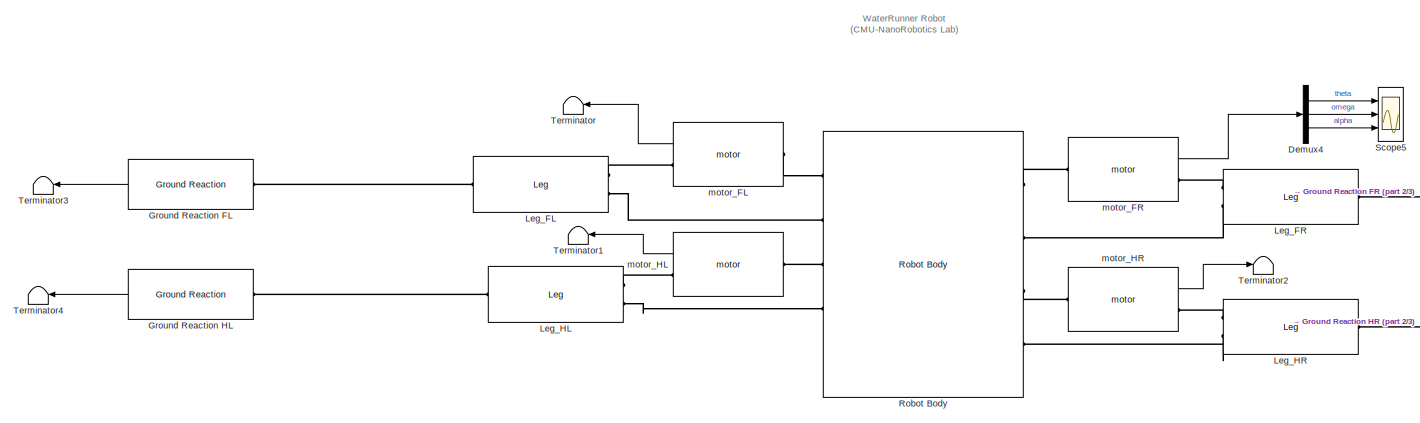
[diagram: root canvas - part 1/3, full width, top band]
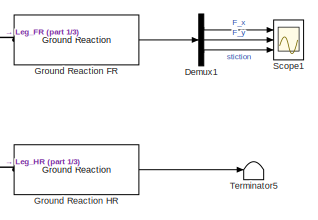
[diagram: root canvas - part 2/3, top right region]
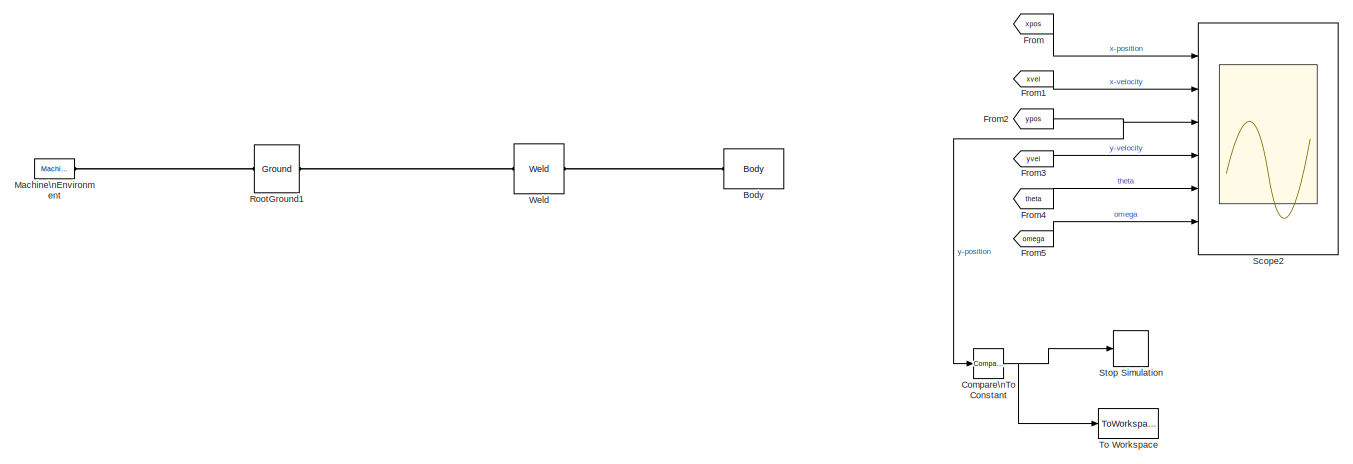
[diagram: root canvas - part 3/3, bottom center region]
MODEL WaterRunner_nofeet
KIND model
CONFIG InitFcn = simParams
CONFIG StartFcn = simParams
BLOCK [Reference] Body  REF=mblibv1/Bodies/Body
  AttachedToCS = CG
  BodyColor = [0.83137 0.81569 0.78431]
  BodyColorSelMode = COLORPALETTE
  CG = Left$CG$[0 0 0]$WORLD$WORLD$m$[0 0 0]$Euler X-Y-Z$deg$WORLD$true$none
  CGPos = [0 0 0]
  CGRot = [0 0 0]
  CS0Pos = []
  CS0Rot = []
  CS10Pos = []
  CS10Rot = []
  CS11Pos = []
  CS11Rot = []
  CS12Pos = []
  CS12Rot = []
  CS13Pos = []
  CS13Rot = []
  CS14Pos = []
  CS14Rot = []
  CS15Pos = []
  CS15Rot = []
  CS16Pos = []
  CS16Rot = []
  CS17Pos = []
  CS17Rot = []
  CS18Pos = []
  CS18Rot = []
  CS19Pos = []
  CS19Rot = []
  CS1Pos = [-0.5 water_level -0.2 ]
  CS1Rot = [0 0 0]
  CS20Pos = []
  CS20Rot = []
  CS2Pos = [-0.5 water_level 0.2 ]
  CS2Rot = [0 0 0]
  CS3Pos = [4 water_level -0.2 ]
  CS3Rot = [0 0 0]
  CS4Pos = [4 water_level 0.2 ]
  CS4Rot = [0 0 0]
  CS5Pos = []
  CS5Rot = []
  CS6Pos = []
  CS6Rot = []
  CS7Pos = []
  CS7Rot = []
  CS8Pos = []
  CS8Rot = []
  CS9Pos = []
  CS9Rot = []
  ClassName = Body
  Density = 1
  DensityUnits = kg/m^3
  DensityUse = false
  DialogClass = MechanicalBodyBlock
  GraphicsMode = CONVHULL
  Inertia = eye(3)
  InertiaUnits = kg*m^2
  LConnTagsString = CG
  Mass = 1
  MassUnits = kg
  Ports = [0, 0, 0, 0, 0, 1]
  SID = 2127
  Shape = Cylinder
  ShapeDims = [1 1]
  ShapeUnits = m
  ShapeUse = false
  SourceBlock = mblibv1/Bodies/Body
  SourceType = Body
  UpdateFromCAD = off
  WorkingFrames = Left$CS1$[-0.5 water_level -0.2 ]$CG$CG$m$[0 0 0]$Euler X-Y-Z$deg$WORLD$false$none#Left$CS2$[-0.5 water_level 0.2 ]$CG$CG$m$[0 0 0]$Euler X-Y-Z$deg$WORLD$false$none#Left$CS3$[4 water_level -0.2 ]$CG$CG$m$[0 0 0]$Euler X-Y-Z$deg$WORLD$false$none#Left$CS4$[4 water_level 0.2 ]$CG$CG$m$[0 0 0]$Euler X-Y-Z$deg$WORLD$false$none
BLOCK [Reference] Compare\nTo Constant  REF=simulink/Logic and Bit\nOperations/Compare\nTo Constant
  OutDataTypeStr = boolean
  Ports = [1, 1]
  SID = 2114
  SourceBlock = simulink/Logic and Bit\nOperations/Compare\nTo Constant
  SourceType = Compare To Constant
  ZeroCross = on
  const = -.03
  relop = <
BLOCK [Demux] Demux1
  DisplayOption = bar
  Outputs = 3
  Ports = [1, 3]
  SID = 2171
BLOCK [Demux] Demux4
  DisplayOption = bar
  Outputs = 3
  Ports = [1, 3]
  SID = 2124
BLOCK [From] From
  GotoTag = xpos
  SID = 2115
  TagVisibility = global
BLOCK [From] From1
  GotoTag = xvel
  SID = 2116
  TagVisibility = global
BLOCK [From] From2
  GotoTag = ypos
  SID = 2117
  TagVisibility = global
BLOCK [From] From3
  GotoTag = yvel
  SID = 2118
  TagVisibility = global
BLOCK [From] From4
  GotoTag = theta
  SID = 2119
  TagVisibility = global
BLOCK [From] From5
  GotoTag = omega
  SID = 2120
  TagVisibility = global
BLOCK [Reference] Ground Reaction FL  REF=WaterRunner_lib/Ground Reaction
  Ports = [0, 1, 0, 0, 0, 1]
  SID = 2164
  SourceBlock = WaterRunner_lib/Ground Reaction
  SourceType = SubSystem
BLOCK [Reference] Ground Reaction FR  REF=WaterRunner_lib/Ground Reaction
  Ports = [0, 1, 0, 0, 0, 1]
  SID = 2163
  SourceBlock = WaterRunner_lib/Ground Reaction
  SourceType = SubSystem
BLOCK [Reference] Ground Reaction HL  REF=WaterRunner_lib/Ground Reaction
  Ports = [0, 1, 0, 0, 0, 1]
  SID = 2165
  SourceBlock = WaterRunner_lib/Ground Reaction
  SourceType = SubSystem
BLOCK [Reference] Ground Reaction HR  REF=WaterRunner_lib/Ground Reaction
  Ports = [0, 1, 0, 0, 0, 1]
  SID = 2162
  SourceBlock = WaterRunner_lib/Ground Reaction
  SourceType = SubSystem
BLOCK [Reference] Leg_FL  REF=WaterRunner_lib/Leg
  Ports = [0, 0, 0, 0, 0, 2, 1]
  SID = 2148
  SourceBlock = WaterRunner_lib/Leg
BLOCK [Reference] Leg_FR  REF=WaterRunner_lib/Leg
  Ports = [0, 0, 0, 0, 0, 2, 1]
  SID = 2092
  SourceBlock = WaterRunner_lib/Leg
BLOCK [Reference] Leg_HL  REF=WaterRunner_lib/Leg
  Ports = [0, 0, 0, 0, 0, 2, 1]
  SID = 2153
  SourceBlock = WaterRunner_lib/Leg
BLOCK [Reference] Leg_HR  REF=WaterRunner_lib/Leg
  Ports = [0, 0, 0, 0, 0, 2, 1]
  SID = 2143
  SourceBlock = WaterRunner_lib/Leg
BLOCK [Reference] Machine\nEnvironment  REF=mblibv1/Bodies/Machine\nEnvironment
  AnalysisType = Forward dynamics
  AngularAssemblyTolerance = 1e-3
  AngularAssemblyToleranceUnits = rad
  BodyColorSelMode = Use model default
  BodyVisualizationType = Use model default body geometries
  ClassName = Environment
  ConstraintAbsTolerance = 1e-4
  ConstraintRelTolerance = 1e-4
  ConstraintSolverType = Stabilizing
  DefaultBodyColor = [1 0 0]
  DialogTemplateClass = MECH.MachineEnvironment
  Dimensionality = Auto-detect
  Gravity = [0 -9.81 0]
  GravityAsSignal = off
  GravityUnits = m/s^2
  LinearAssemblyTolerance = 1e-3
  LinearAssemblyToleranceUnits = m
  PerturbationSize = 1e-5
  PhysicalDomain = Mechanical
  PortType = env
  Ports = [0, 0, 0, 0, 0, 0, 1]
  RedundancyAnalysisTolerance = 1e-14
  RedundancyAnalysisToleranceType = Automatically select tolerance
  SID = 2128
  SourceBlock = mblibv1/Bodies/Machine\nEnvironment
  SourceType = Machine Environment
  StatePerturbationType = Fixed
  SyncWhenCopied = off
  UseRobustSingularityHandling = off
  VisualizeMachine = on
BLOCK [Reference] Robot Body  REF=WaterRunner_lib/Robot Body
  Ports = [0, 0, 0, 0, 0, 5, 4]
  SID = 2102
  SourceBlock = WaterRunner_lib/Robot Body
  initRobHeight = initRobHeight
BLOCK [Reference] RootGround1  REF=mblibv1/Bodies/Ground
  ClassName = Ground
  CoordPosition = [0 0 0]
  CoordPositionUnits = m
  DialogClass = GroundBlock
  LeftPortType = env
  MachineId = [1 0]
  PhysicalDomain = Mechanical
  Ports = [0, 0, 0, 0, 0, 1, 1]
  RightPortType = workingframe
  SID = 2129
  ShowEnvPort = on
  SourceBlock = mblibv1/Bodies/Ground
  SourceType = Ground
  StateVectorMgrId = 0
  UpdateFromCAD = on
  UserData = DataTag0
  UserDataPersistent = on
BLOCK [Scope] Scope1
  DataFormat = StructureWithTime
  Floating = off
  LimitDataPoints = off
  NumInputPorts = 3
  Ports = [3]
  SID = 2172
  SampleTime = 0
  SaveName = footForce
  SaveToWorkspace = on
  ShowLegends = off
  TimeRange = 2
  YMax = 500~1500~30000
  YMin = -1250~0~-70000
  ZoomMode = xonly
BLOCK [Scope] Scope2
  DataFormat = StructureWithTime
  Floating = off
  LegendLocations = 0.76193      0.9325    0.056569    0.046382\n0.76008      0.7741    0.057091    0.046382\n0.76008     0.61569    0.057091    0.046382\n0.75824     0.45728    0.057612    0.046382\n0.80161     0.29888    0.042492    0.046382\n0.79576     0.14047    0.047706    0.046382
  LimitDataPoints = off
  NumInputPorts = 6
  Ports = [6]
  SID = 2121
  SampleTime = 0
  SaveName = position
  SaveToWorkspace = on
  ShowLegends = on
  TimeRange = 2
  YMax = 2~3.5~0.2~1.5~0.8~10
  YMin = 0~0~-1.38778e-17~-1.5~-0.1~-7.5
  ZoomMode = xonly
BLOCK [Scope] Scope5
  DataFormat = StructureWithTime
  Floating = off
  LimitDataPoints = off
  NumInputPorts = 3
  Ports = [3]
  SID = 2125
  SampleTime = 0
  SaveName = MotorMotion
  SaveToWorkspace = on
  ShowLegends = off
  TimeRange = 2
  YMax = 0~0~30000
  YMin = -17.5~-90~-70000
  ZoomMode = yonly
BLOCK [Stop] Stop Simulation
  SID = 2122
BLOCK [Terminator] Terminator
  SID = 2166
BLOCK [Terminator] Terminator1
  SID = 2167
BLOCK [Terminator] Terminator2
  SID = 2168
BLOCK [Terminator] Terminator3
  SID = 2174
BLOCK [Terminator] Terminator4
  SID = 2176
BLOCK [Terminator] Terminator5
  SID = 2177
BLOCK [ToWorkspace] To Workspace
  MaxDataPoints = inf
  Ports = [1]
  SID = 2123
  SampleTime = -1
  SaveFormat = Timeseries
  VariableName = stopped
BLOCK [Reference] Weld  REF=mblibv1/Joints/Weld
  ClassName = Joint
  CutJoint = off
  DialogClass = JointBlock
  LConnTagsString = __newl0
  MarkAsCut = off
  NumSAPorts = 0
  Ports = [0, 0, 0, 0, 0, 1, 1]
  PrimitiveProps = W$WORLD$[0 0 0]$weld
  Primitives = weld
  RConnTagsString = __newr0
  SID = 2130
  SourceBlock = mblibv1/Joints/Weld
  SourceType = Weld
  UpdateFromCAD = off
  WAxis = [0 0 0]
BLOCK [Reference] motor_FL  REF=WaterRunner_lib/motor
  Ports = [0, 1, 0, 0, 0, 1, 1]
  SID = 2147
  SourceBlock = WaterRunner_lib/motor
  ic_angle = pi
  variableName = work_FL
BLOCK [Reference] motor_FR  REF=WaterRunner_lib/motor
  Ports = [0, 1, 0, 0, 0, 1, 1]
  SID = 2087
  SourceBlock = WaterRunner_lib/motor
  ic_angle = 0
  variableName = work_FR
BLOCK [Reference] motor_HL  REF=WaterRunner_lib/motor
  Ports = [0, 1, 0, 0, 0, 1, 1]
  SID = 2155
  SourceBlock = WaterRunner_lib/motor
  ic_angle = 0
  variableName = work_HL
BLOCK [Reference] motor_HR  REF=WaterRunner_lib/motor
  Ports = [0, 1, 0, 0, 0, 1, 1]
  SID = 2146
  SourceBlock = WaterRunner_lib/motor
  ic_angle = pi
  variableName = work_HR
ANNOTATION (root): WaterRunner Robot\n(CMU-NanoRobotics Lab)
NET Compare\nTo Constant:1 -> Stop Simulation:1, To Workspace:1
LINE Demux1:1 -> Scope1:1
LINE Demux1:2 -> Scope1:2
LINE Demux1:3 -> Scope1:3
LINE Demux4:1 -> Scope5:1
LINE Demux4:2 -> Scope5:2
LINE Demux4:3 -> Scope5:3
LINE From1:1 -> Scope2:2
NET From2:1 -> Compare\nTo Constant:1, Scope2:3
LINE From3:1 -> Scope2:4
LINE From4:1 -> Scope2:5
LINE From5:1 -> Scope2:6
LINE From:1 -> Scope2:1
LINE Ground Reaction FL:1 -> Terminator3:1
LINE Ground Reaction FR:1 -> Demux1:1
LINE Ground Reaction HL:1 -> Terminator4:1
LINE Ground Reaction HR:1 -> Terminator5:1
LINE motor_FL:1 -> Terminator:1
LINE motor_FR:1 -> Demux4:1
LINE motor_HL:1 -> Terminator1:1
LINE motor_HR:1 -> Terminator2:1
PLINE Body:LConn1 -- Weld:RConn1
PLINE Ground Reaction FL:LConn1 -- Leg_FL:RConn1
PLINE Ground Reaction FR:LConn1 -- Leg_FR:RConn1
PLINE Ground Reaction HL:LConn1 -- Leg_HL:RConn1
PLINE Ground Reaction HR:LConn1 -- Leg_HR:RConn1
PLINE Leg_FL:LConn1 -- motor_FL:RConn1
PLINE Leg_FL:LConn2 -- Robot Body:LConn2
PLINE Leg_FR:LConn1 -- motor_FR:RConn1
PLINE Leg_FR:LConn2 -- Robot Body:RConn2
PLINE Leg_HL:LConn1 -- motor_HL:RConn1
PLINE Leg_HL:LConn2 -- Robot Body:LConn4
PLINE Leg_HR:LConn1 -- motor_HR:RConn1
PLINE Leg_HR:LConn2 -- Robot Body:RConn4
PLINE Machine\nEnvironment:RConn1 -- RootGround1:LConn1
PLINE Robot Body:LConn1 -- motor_FL:LConn1
PLINE Robot Body:LConn3 -- motor_HL:LConn1
PLINE Robot Body:RConn1 -- motor_FR:LConn1
PLINE Robot Body:RConn3 -- motor_HR:LConn1
PLINE RootGround1:RConn1 -- Weld:LConn1
note: NET lines group one-source signal fan-out (src -> all destinations, sorted); 1:1 wires keep LINE
